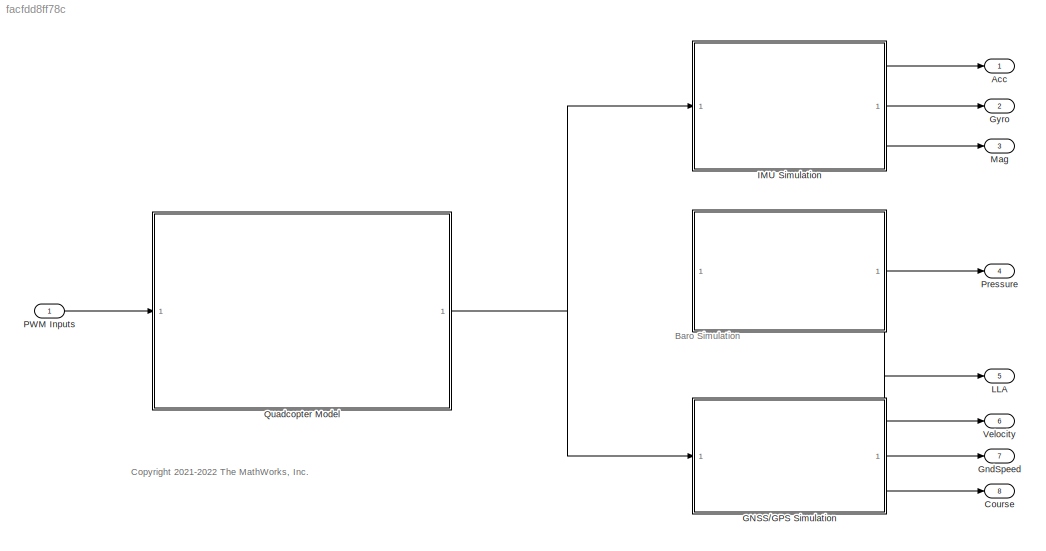
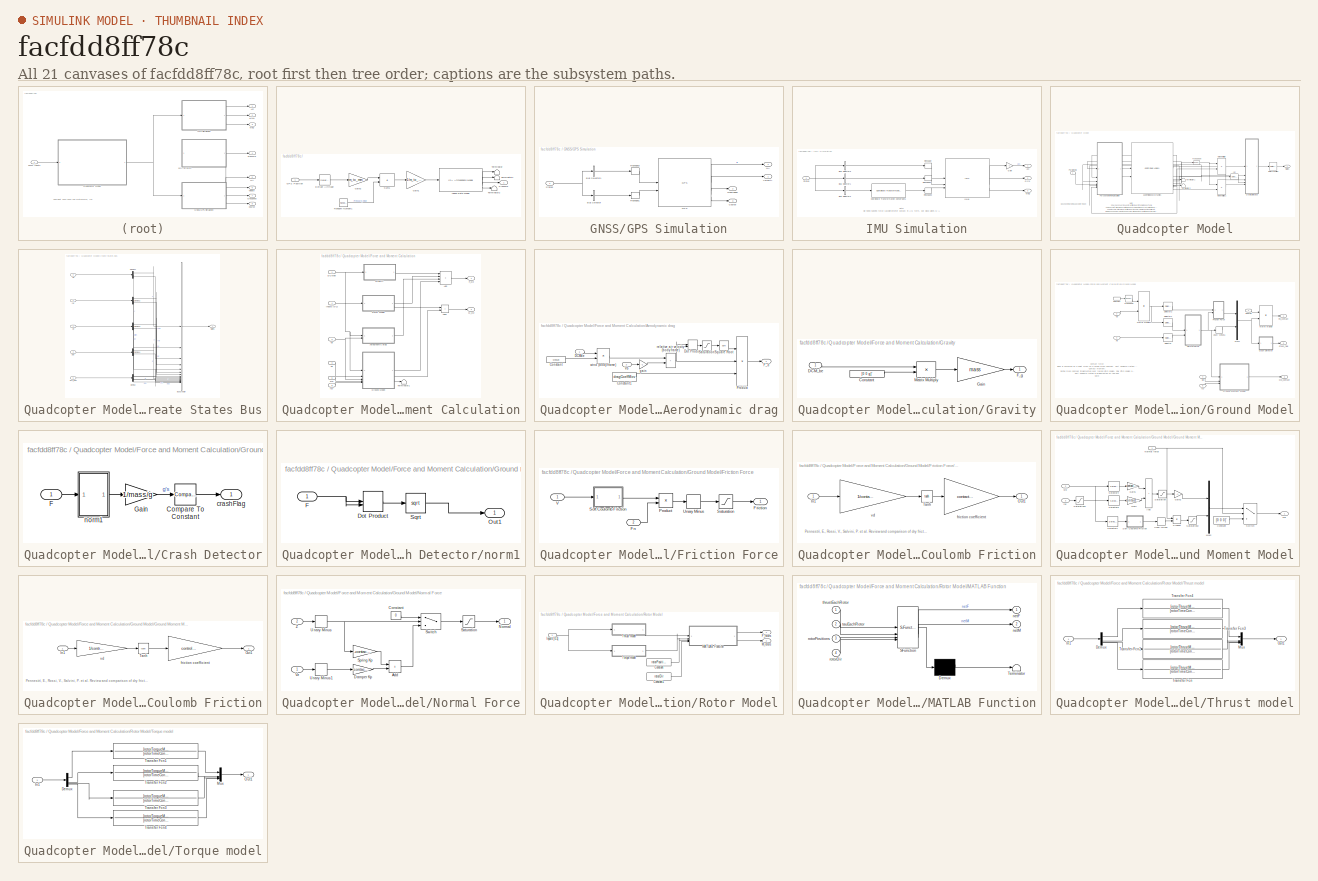
[diagram: thumbnail index - all 21 canvases of the model, root first then tree order]
MODEL slx_facfdd8ff78c
KIND model
CONFIG AbsTol = auto
CONFIG EnableMultiTasking = off
CONFIG FixedStep = auto
CONFIG MaxStep = auto
CONFIG MinStep = auto
CONFIG RelTol = 1e-3
CONFIG SampleTimeConstraint = Unconstrained
CONFIG SolverName = ode4
CONFIG StartTime = 0.0
CONFIG StopTime = 10.0
BLOCK [SubSystem]  
  PortSchema = {"entries":[{"content":{"sides":[{"content":{"connectorIds":[]},"type":"ConnectorPlacement.EquallySpacedRectSide","uuid":"7ecc8b21-8f8f-4144-826a-6b68e30dbf7d"},{"content":{"connectorIds":["Out1"],"side":"RIGHT"},"type":"ConnectorPlacement.EquallySpacedRectSide","uuid":"81a1dd55-8330-4386-9921-36c0eb60d526"},{"content":{"connectorIds":[],"side":"TOP"},"type":"ConnectorPlacement.EquallySpacedRectSi...<+384ch>
BLOCK [Selector]  /Extract Altitude
  IndexOptions = Index vector (dialog)
  Indices = [3]
  InputPortWidth = 3
  OutputSizes = 1
BLOCK [Inport]  /GPS Position
BLOCK [Gain]  /Gain1
  Gain = 1/m_to_mm
BLOCK [Gain]  /Gain2
  Gain = m_to_mm
BLOCK [Reference]  /Lapse Rate Model  REF=aerolibatmos2/ISA Atmosphere Model
  SourceBlock = aerolibatmos2/ISA Atmosphere Model
  SourceType = International Standard Atmosphere Model
BLOCK [Outport]  /Pressure
BLOCK [RandomNumber]  /Random Number1
  SampleTime = SampleTime
  Seed = 10
  Variance = 10000
BLOCK [Sum]  /Sum1
  IconShape = rectangular
  Inputs = |++
BLOCK [Terminator]  /Terminator
BLOCK [Terminator]  /Terminator1
BLOCK [Terminator]  /Terminator2
BLOCK [Outport] Acc
BLOCK [Outport] Course
  Port = 8
BLOCK [SubSystem] GNSS//GPS Simulation
  PortSchema = {"entries":[{"content":{"sides":[{"content":{"connectorIds":["In1"]},"type":"ConnectorPlacement.EquallySpacedRectSide","uuid":"4934e8ff-5d4b-4e11-968d-c23bd62383a0"},{"content":{"connectorIds":["Out1","Out2","Out3"],"side":"RIGHT"},"type":"ConnectorPlacement.EquallySpacedRectSide","uuid":"9ec8bc0a-2d3c-4dca-835c-010ac29b6ebc"},{"content":{"connectorIds":["Out4"],"side":"TOP"},"type":"ConnectorPlac...<+260ch>
BLOCK [BusSelector] GNSS//GPS Simulation/Bus Selector
  OutputAsBus = on
  OutputSignals = dx,dy,dz
BLOCK [BusSelector] GNSS//GPS Simulation/Bus Selector1
  OutputAsBus = on
  OutputSignals = X,Y,Z
BLOCK [Outport] GNSS//GPS Simulation/Course
  Port = 3
BLOCK [Reference] GNSS//GPS Simulation/GPS  REF=sensorgpslib/GPS
  SourceBlock = sensorgpslib/GPS
  SourceType = fusion.internal.simulink.gpsSensor
BLOCK [Outport] GNSS//GPS Simulation/GndSpeed
  Port = 2
BLOCK [Outport] GNSS//GPS Simulation/LLA
  Port = 4
BLOCK [Reshape] GNSS//GPS Simulation/Reshape1
  OutputDimensionality = Row vector (2-D)
BLOCK [Reshape] GNSS//GPS Simulation/Reshape3
  OutputDimensionality = Row vector (2-D)
BLOCK [Inport] GNSS//GPS Simulation/States
BLOCK [Outport] GNSS//GPS Simulation/Velocity
BLOCK [Outport] GndSpeed
  Port = 7
BLOCK [Outport] Gyro
  Port = 2
BLOCK [SubSystem] IMU Simulation
BLOCK [Outport] IMU Simulation/Acc
BLOCK [BusSelector] IMU Simulation/Bus Selector1
  OutputAsBus = on
  OutputSignals = p,q,r
BLOCK [BusSelector] IMU Simulation/Bus Selector2
  OutputAsBus = on
  OutputSignals = yaw,pitch,roll
BLOCK [BusSelector] IMU Simulation/Bus Selector3
  OutputAsBus = on
  OutputSignals = ddx,ddy,ddz
BLOCK [Reference] IMU Simulation/Coordinate Transformation Conversion1  REF=robotcorelib/Coordinate Transformation Conversion
  SourceBlock = robotcorelib/Coordinate Transformation Conversion
  SourceType = robotics.slcore.internal.block.CoordinateTransformationConversion
BLOCK [Gain] IMU Simulation/Gain
  Gain = -1
BLOCK [Outport] IMU Simulation/Gyro
  Port = 2
BLOCK [Reference] IMU Simulation/IMU1  REF=mspsensorlib/IMU
  SourceBlock = mspsensorlib/IMU
  SourceType = fusion.simulink.imuSensor
BLOCK [Outport] IMU Simulation/Mag
  Port = 3
BLOCK [Reshape] IMU Simulation/Reshape
  OutputDimensionality = Row vector (2-D)
BLOCK [Reshape] IMU Simulation/Reshape2
  OutputDimensionality = Row vector (2-D)
BLOCK [Reshape] IMU Simulation/Reshape3
  OutputDimensionality = Row vector (2-D)
BLOCK [Inport] IMU Simulation/States
BLOCK [Outport] LLA
  Port = 5
BLOCK [Outport] Mag
  Port = 3
BLOCK [Inport] PWM Inputs
BLOCK [Outport] Pressure
  Port = 4
BLOCK [SubSystem] Quadcopter Model
BLOCK [Reference] Quadcopter Model/6DOF Rigid body dynamics   REF=shared6dof/6DOF (Euler Angles)
  SourceBlock = shared6dof/6DOF (Euler Angles)
  SourceType = 6DOF EoM (Body Axis)
BLOCK [SubSystem] Quadcopter Model/Create States Bus
BLOCK [BusCreator] Quadcopter Model/Create States Bus/Bus Creator
  DisplayOption = bar
  InheritFromInputs = on
  Inputs = X,Y,Z,yaw,pitch,roll,dx,dy,dz,p,q,r,ddx,ddy,ddz
BLOCK [Demux] Quadcopter Model/Create States Bus/Demux
  Outputs = 3
BLOCK [Demux] Quadcopter Model/Create States Bus/Demux1
  Outputs = 3
BLOCK [Demux] Quadcopter Model/Create States Bus/Demux2
  Outputs = 3
BLOCK [Demux] Quadcopter Model/Create States Bus/Demux3
  Outputs = 3
BLOCK [Demux] Quadcopter Model/Create States Bus/Demux4
  Outputs = 3
BLOCK [Outport] Quadcopter Model/Create States Bus/States
BLOCK [Inport] Quadcopter Model/Create States Bus/Ve
BLOCK [Inport] Quadcopter Model/Create States Bus/Xe
  Port = 2
BLOCK [Inport] Quadcopter Model/Create States Bus/acc_lnav
  Port = 5
BLOCK [Inport] Quadcopter Model/Create States Bus/pqr
  Port = 3
BLOCK [Inport] Quadcopter Model/Create States Bus/ypr
  Port = 4
BLOCK [SubSystem] Quadcopter Model/Force and Moment Calculation
BLOCK [Sum] Quadcopter Model/Force and Moment Calculation/Add
  IconShape = rectangular
  Inputs = ++++
BLOCK [Sum] Quadcopter Model/Force and Moment Calculation/Add1
  IconShape = rectangular
BLOCK [SubSystem] Quadcopter Model/Force and Moment Calculation/Aerodynamic drag
BLOCK [Constant] Quadcopter Model/Force and Moment Calculation/Aerodynamic drag/Constant
  Value = windVel
BLOCK [Constant] Quadcopter Model/Force and Moment Calculation/Aerodynamic drag/Constant1
  Value = dragCoeffMov
BLOCK [Inport] Quadcopter Model/Force and Moment Calculation/Aerodynamic drag/DCMbe
BLOCK [DotProduct] Quadcopter Model/Force and Moment Calculation/Aerodynamic drag/Dot Product
  OutDataTypeStr = Inherit: Inherit via internal rule
BLOCK [Outport] Quadcopter Model/Force and Moment Calculation/Aerodynamic drag/F_d
BLOCK [Product] Quadcopter Model/Force and Moment Calculation/Aerodynamic drag/Product
  Inputs = 3
BLOCK [Saturate] Quadcopter Model/Force and Moment Calculation/Aerodynamic drag/Saturation
  LowerLimit = 0.0001
  UpperLimit = inf
BLOCK [Sqrt] Quadcopter Model/Force and Moment Calculation/Aerodynamic drag/Square Root
BLOCK [Inport] Quadcopter Model/Force and Moment Calculation/Aerodynamic drag/Vb
  Port = 2
BLOCK [Gain] Quadcopter Model/Force and Moment Calculation/Aerodynamic drag/gain
  Gain = -1
BLOCK [Sum] Quadcopter Model/Force and Moment Calculation/Aerodynamic drag/relative air velocity (body frame)
  IconShape = rectangular
BLOCK [Product] Quadcopter Model/Force and Moment Calculation/Aerodynamic drag/wind (body frame)
  Multiplication = Matrix(*)
BLOCK [Inport] Quadcopter Model/Force and Moment Calculation/DCMbe
BLOCK [Outport] Quadcopter Model/Force and Moment Calculation/F_xyz
BLOCK [SubSystem] Quadcopter Model/Force and Moment Calculation/Gravity
BLOCK [Constant] Quadcopter Model/Force and Moment Calculation/Gravity/Constant
  Value = [0 0 g]'
BLOCK [Inport] Quadcopter Model/Force and Moment Calculation/Gravity/DCM_be
BLOCK [Outport] Quadcopter Model/Force and Moment Calculation/Gravity/F_g
BLOCK [Gain] Quadcopter Model/Force and Moment Calculation/Gravity/Gain
  Gain = mass
BLOCK [Product] Quadcopter Model/Force and Moment Calculation/Gravity/Matrix Multiply
  Multiplication = Matrix(*)
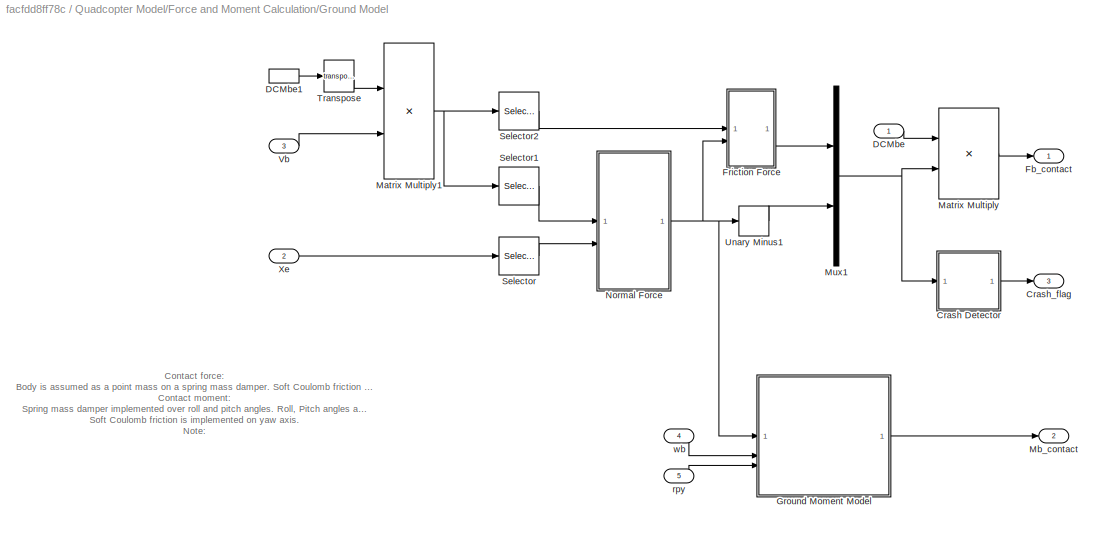
BLOCK [SubSystem] Quadcopter Model/Force and Moment Calculation/Ground Model
BLOCK [SubSystem] Quadcopter Model/Force and Moment Calculation/Ground Model/Crash Detector
BLOCK [Reference] Quadcopter Model/Force and Moment Calculation/Ground Model/Crash Detector/Compare To Constant  REF=simulink/Logic and Bit
Operations/Compare
To Constant
  SourceBlock = simulink/Logic and Bit\nOperations/Compare\nTo Constant
  SourceType = Compare To Constant
BLOCK [Inport] Quadcopter Model/Force and Moment Calculation/Ground Model/Crash Detector/F
BLOCK [Gain] Quadcopter Model/Force and Moment Calculation/Ground Model/Crash Detector/Gain
  Gain = 1/mass/g
BLOCK [Outport] Quadcopter Model/Force and Moment Calculation/Ground Model/Crash Detector/crashFlag
BLOCK [SubSystem] Quadcopter Model/Force and Moment Calculation/Ground Model/Crash Detector/norm1
BLOCK [DotProduct] Quadcopter Model/Force and Moment Calculation/Ground Model/Crash Detector/norm1/Dot Product
  OutDataTypeStr = Inherit: Inherit via internal rule
BLOCK [Inport] Quadcopter Model/Force and Moment Calculation/Ground Model/Crash Detector/norm1/F
BLOCK [Outport] Quadcopter Model/Force and Moment Calculation/Ground Model/Crash Detector/norm1/Out1
BLOCK [Sqrt] Quadcopter Model/Force and Moment Calculation/Ground Model/Crash Detector/norm1/Sqrt
BLOCK [Outport] Quadcopter Model/Force and Moment Calculation/Ground Model/Crash_flag
  Port = 3
BLOCK [Inport] Quadcopter Model/Force and Moment Calculation/Ground Model/DCMbe
BLOCK [InportShadow] Quadcopter Model/Force and Moment Calculation/Ground Model/DCMbe1
BLOCK [Outport] Quadcopter Model/Force and Moment Calculation/Ground Model/Fb_contact
BLOCK [SubSystem] Quadcopter Model/Force and Moment Calculation/Ground Model/Friction Force
BLOCK [Inport] Quadcopter Model/Force and Moment Calculation/Ground Model/Friction Force/Fn
  Port = 2
BLOCK [Outport] Quadcopter Model/Force and Moment Calculation/Ground Model/Friction Force/Friction
BLOCK [Product] Quadcopter Model/Force and Moment Calculation/Ground Model/Friction Force/Product
BLOCK [Saturate] Quadcopter Model/Force and Moment Calculation/Ground Model/Friction Force/Saturation
  LowerLimit = -contact.translation.maxFriction
  UpperLimit = contact.translation.maxFriction
BLOCK [SubSystem] Quadcopter Model/Force and Moment Calculation/Ground Model/Friction Force/Soft Coulomb Friction
BLOCK [Inport] Quadcopter Model/Force and Moment Calculation/Ground Model/Friction Force/Soft Coulomb Friction/In1
BLOCK [Outport] Quadcopter Model/Force and Moment Calculation/Ground Model/Friction Force/Soft Coulomb Friction/Out1
BLOCK [Trigonometry] Quadcopter Model/Force and Moment Calculation/Ground Model/Friction Force/Soft Coulomb Friction/Tanh
  Operator = tanh
BLOCK [Gain] Quadcopter Model/Force and Moment Calculation/Ground Model/Friction Force/Soft Coulomb Friction/friction coefficient
  Gain = contact.translation.friction
BLOCK [Gain] Quadcopter Model/Force and Moment Calculation/Ground Model/Friction Force/Soft Coulomb Friction/vd
  Gain = 1/contact.translation.vd
BLOCK [UnaryMinus] Quadcopter Model/Force and Moment Calculation/Ground Model/Friction Force/Unary Minus
BLOCK [Inport] Quadcopter Model/Force and Moment Calculation/Ground Model/Friction Force/V
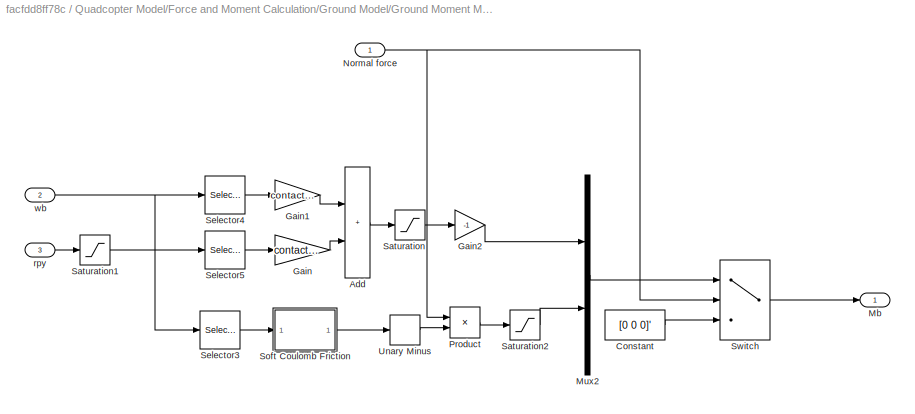
BLOCK [SubSystem] Quadcopter Model/Force and Moment Calculation/Ground Model/Ground Moment Model
BLOCK [Sum] Quadcopter Model/Force and Moment Calculation/Ground Model/Ground Moment Model/Add
  IconShape = rectangular
BLOCK [Constant] Quadcopter Model/Force and Moment Calculation/Ground Model/Ground Moment Model/Constant
  Value = [0 0 0]'
BLOCK [Gain] Quadcopter Model/Force and Moment Calculation/Ground Model/Ground Moment Model/Gain
  Gain = contact.rotation.spring
BLOCK [Gain] Quadcopter Model/Force and Moment Calculation/Ground Model/Ground Moment Model/Gain1
  Gain = contact.rotation.damper
BLOCK [Gain] Quadcopter Model/Force and Moment Calculation/Ground Model/Ground Moment Model/Gain2
  Gain = -1
BLOCK [Outport] Quadcopter Model/Force and Moment Calculation/Ground Model/Ground Moment Model/Mb
BLOCK [Mux] Quadcopter Model/Force and Moment Calculation/Ground Model/Ground Moment Model/Mux2
  DisplayOption = bar
  Inputs = 2
BLOCK [Inport] Quadcopter Model/Force and Moment Calculation/Ground Model/Ground Moment Model/Normal force
BLOCK [Product] Quadcopter Model/Force and Moment Calculation/Ground Model/Ground Moment Model/Product
BLOCK [Saturate] Quadcopter Model/Force and Moment Calculation/Ground Model/Ground Moment Model/Saturation
  LowerLimit = -control.rotation.maxMoment
  UpperLimit = control.rotation.maxMoment
BLOCK [Saturate] Quadcopter Model/Force and Moment Calculation/Ground Model/Ground Moment Model/Saturation1
  LowerLimit = -20*pi/180
  UpperLimit = 20*pi/180
BLOCK [Saturate] Quadcopter Model/Force and Moment Calculation/Ground Model/Ground Moment Model/Saturation2
  LowerLimit = -control.rotation.maxMoment
  UpperLimit = control.rotation.maxMoment
BLOCK [Selector] Quadcopter Model/Force and Moment Calculation/Ground Model/Ground Moment Model/Selector3
  IndexOptions = Index vector (dialog)
  Indices = [3]
  InputPortWidth = 3
  OutputSizes = 1
BLOCK [Selector] Quadcopter Model/Force and Moment Calculation/Ground Model/Ground Moment Model/Selector4
  IndexOptions = Index vector (dialog)
  Indices = [1, 2]
  InputPortWidth = 3
  OutputSizes = 1
BLOCK [Selector] Quadcopter Model/Force and Moment Calculation/Ground Model/Ground Moment Model/Selector5
  IndexOptions = Index vector (dialog)
  Indices = [1, 2]
  InputPortWidth = 3
  OutputSizes = 1
BLOCK [SubSystem] Quadcopter Model/Force and Moment Calculation/Ground Model/Ground Moment Model/Soft Coulomb Friction
BLOCK [Inport] Quadcopter Model/Force and Moment Calculation/Ground Model/Ground Moment Model/Soft Coulomb Friction/In1
BLOCK [Outport] Quadcopter Model/Force and Moment Calculation/Ground Model/Ground Moment Model/Soft Coulomb Friction/Out1
BLOCK [Trigonometry] Quadcopter Model/Force and Moment Calculation/Ground Model/Ground Moment Model/Soft Coulomb Friction/Tanh
  Operator = tanh
BLOCK [Gain] Quadcopter Model/Force and Moment Calculation/Ground Model/Ground Moment Model/Soft Coulomb Friction/friction coefficient
  Gain = control.rotation.friction
BLOCK [Gain] Quadcopter Model/Force and Moment Calculation/Ground Model/Ground Moment Model/Soft Coulomb Friction/vd
  Gain = 1/control.rotation.vd
BLOCK [Switch] Quadcopter Model/Force and Moment Calculation/Ground Model/Ground Moment Model/Switch
  Criteria = u2 > Threshold
  InputSameDT = off
  SaturateOnIntegerOverflow = off
BLOCK [UnaryMinus] Quadcopter Model/Force and Moment Calculation/Ground Model/Ground Moment Model/Unary Minus
BLOCK [Inport] Quadcopter Model/Force and Moment Calculation/Ground Model/Ground Moment Model/rpy
  Port = 3
BLOCK [Inport] Quadcopter Model/Force and Moment Calculation/Ground Model/Ground Moment Model/wb
  Port = 2
BLOCK [Product] Quadcopter Model/Force and Moment Calculation/Ground Model/Matrix Multiply
  Multiplication = Matrix(*)
BLOCK [Product] Quadcopter Model/Force and Moment Calculation/Ground Model/Matrix Multiply1
  Multiplication = Matrix(*)
BLOCK [Outport] Quadcopter Model/Force and Moment Calculation/Ground Model/Mb_contact
  Port = 2
BLOCK [Mux] Quadcopter Model/Force and Moment Calculation/Ground Model/Mux1
  DisplayOption = bar
  Inputs = 2
BLOCK [SubSystem] Quadcopter Model/Force and Moment Calculation/Ground Model/Normal Force
BLOCK [Sum] Quadcopter Model/Force and Moment Calculation/Ground Model/Normal Force/Add
  IconShape = rectangular
BLOCK [Constant] Quadcopter Model/Force and Moment Calculation/Ground Model/Normal Force/Constant
  Value = 0
BLOCK [Gain] Quadcopter Model/Force and Moment Calculation/Ground Model/Normal Force/Damper Kp
  Gain = -contact.translation.damper
BLOCK [Outport] Quadcopter Model/Force and Moment Calculation/Ground Model/Normal Force/Normal
BLOCK [Saturate] Quadcopter Model/Force and Moment Calculation/Ground Model/Normal Force/Saturation
  LowerLimit = 0
  UpperLimit = contact.translation.maxNormal
BLOCK [Gain] Quadcopter Model/Force and Moment Calculation/Ground Model/Normal Force/Spring Kp
  Gain = -contact.translation.spring
BLOCK [Switch] Quadcopter Model/Force and Moment Calculation/Ground Model/Normal Force/Switch
  Criteria = u2 > Threshold
  InputSameDT = off
  SaturateOnIntegerOverflow = off
BLOCK [UnaryMinus] Quadcopter Model/Force and Moment Calculation/Ground Model/Normal Force/Unary Minus
BLOCK [UnaryMinus] Quadcopter Model/Force and Moment Calculation/Ground Model/Normal Force/Unary Minus1
BLOCK [Inport] Quadcopter Model/Force and Moment Calculation/Ground Model/Normal Force/Vz
BLOCK [Inport] Quadcopter Model/Force and Moment Calculation/Ground Model/Normal Force/Z
  Port = 2
BLOCK [Selector] Quadcopter Model/Force and Moment Calculation/Ground Model/Selector
  IndexOptions = Index vector (dialog)
  Indices = [3]
  InputPortWidth = 3
  OutputSizes = 1
BLOCK [Selector] Quadcopter Model/Force and Moment Calculation/Ground Model/Selector1
  IndexOptions = Index vector (dialog)
  Indices = [3]
  InputPortWidth = 3
  OutputSizes = 1
BLOCK [Selector] Quadcopter Model/Force and Moment Calculation/Ground Model/Selector2
  IndexOptions = Index vector (dialog)
  Indices = [1,2]
  InputPortWidth = 3
  OutputSizes = 1
BLOCK [Math] Quadcopter Model/Force and Moment Calculation/Ground Model/Transpose
  Operator = transpose
BLOCK [UnaryMinus] Quadcopter Model/Force and Moment Calculation/Ground Model/Unary Minus1
BLOCK [Inport] Quadcopter Model/Force and Moment Calculation/Ground Model/Vb
  Port = 3
BLOCK [Inport] Quadcopter Model/Force and Moment Calculation/Ground Model/Xe
  Port = 2
BLOCK [Inport] Quadcopter Model/Force and Moment Calculation/Ground Model/rpy
  Port = 5
BLOCK [Inport] Quadcopter Model/Force and Moment Calculation/Ground Model/wb
  Port = 4
BLOCK [Inport] Quadcopter Model/Force and Moment Calculation/Inputs [0-1]
  Port = 4
BLOCK [Outport] Quadcopter Model/Force and Moment Calculation/M_xyz
  Port = 2
BLOCK [SubSystem] Quadcopter Model/Force and Moment Calculation/Rotor Model
BLOCK [Constant] Quadcopter Model/Force and Moment Calculation/Rotor Model/Constant
  Value = rotorPositions
BLOCK [Constant] Quadcopter Model/Force and Moment Calculation/Rotor Model/Constant1
  Value = rotorDir
BLOCK [Outport] Quadcopter Model/Force and Moment Calculation/Rotor Model/F_rotors
BLOCK [Inport] Quadcopter Model/Force and Moment Calculation/Rotor Model/Inputs [0-1]
BLOCK [SubSystem] Quadcopter Model/Force and Moment Calculation/Rotor Model/MATLAB Function
  ErrorFcn = Stateflow.Translate.translate
  PermitHierarchicalResolution = ExplicitOnly
  SFBlockType = MATLAB Function
  TreatAsAtomicUnit = on
BLOCK [Demux] Quadcopter Model/Force and Moment Calculation/Rotor Model/MATLAB Function/ Demux 
  Outputs = 1
BLOCK [S-Function] Quadcopter Model/Force and Moment Calculation/Rotor Model/MATLAB Function/ SFunction 
  EnableBusSupport = off
  FunctionName = sf_sfun
  PortCounts = [4 3]
  SFcnIsStateOwnerBlock = off
  SFunctionDeploymentMode = off
  Tag = Stateflow S-Function 5
BLOCK [Terminator] Quadcopter Model/Force and Moment Calculation/Rotor Model/MATLAB Function/ Terminator 
BLOCK [Outport] Quadcopter Model/Force and Moment Calculation/Rotor Model/MATLAB Function/netF
  VectorParamsAs1DForOutWhenUnconnected = off
BLOCK [Outport] Quadcopter Model/Force and Moment Calculation/Rotor Model/MATLAB Function/netM
  Port = 2
BLOCK [Inport] Quadcopter Model/Force and Moment Calculation/Rotor Model/MATLAB Function/rotorDir
  Port = 4
BLOCK [Inport] Quadcopter Model/Force and Moment Calculation/Rotor Model/MATLAB Function/rotorPositions
  Port = 3
BLOCK [Inport] Quadcopter Model/Force and Moment Calculation/Rotor Model/MATLAB Function/tauEachRotor
  Port = 2
BLOCK [Inport] Quadcopter Model/Force and Moment Calculation/Rotor Model/MATLAB Function/thrustEachRotor
BLOCK [Outport] Quadcopter Model/Force and Moment Calculation/Rotor Model/M_rotors
  Port = 2
BLOCK [SubSystem] Quadcopter Model/Force and Moment Calculation/Rotor Model/Thrust model
BLOCK [Demux] Quadcopter Model/Force and Moment Calculation/Rotor Model/Thrust model/Demux
BLOCK [Inport] Quadcopter Model/Force and Moment Calculation/Rotor Model/Thrust model/In1
BLOCK [Mux] Quadcopter Model/Force and Moment Calculation/Rotor Model/Thrust model/Mux
  DisplayOption = bar
BLOCK [Outport] Quadcopter Model/Force and Moment Calculation/Rotor Model/Thrust model/Out1
BLOCK [TransferFcn] Quadcopter Model/Force and Moment Calculation/Rotor Model/Thrust model/Transfer Fcn
  Denominator = [rotorTimeConst 1]
  Numerator = [rotorThrustMax]
BLOCK [TransferFcn] Quadcopter Model/Force and Moment Calculation/Rotor Model/Thrust model/Transfer Fcn2
  Denominator = [rotorTimeConst 1]
  Numerator = [rotorThrustMax]
BLOCK [TransferFcn] Quadcopter Model/Force and Moment Calculation/Rotor Model/Thrust model/Transfer Fcn3
  Denominator = [rotorTimeConst 1]
  Numerator = [rotorThrustMax]
BLOCK [TransferFcn] Quadcopter Model/Force and Moment Calculation/Rotor Model/Thrust model/Transfer Fcn4
  Denominator = [rotorTimeConst 1]
  Numerator = [rotorThrustMax]
BLOCK [SubSystem] Quadcopter Model/Force and Moment Calculation/Rotor Model/Torque model
BLOCK [Demux] Quadcopter Model/Force and Moment Calculation/Rotor Model/Torque model/Demux
BLOCK [Inport] Quadcopter Model/Force and Moment Calculation/Rotor Model/Torque model/In1
BLOCK [Mux] Quadcopter Model/Force and Moment Calculation/Rotor Model/Torque model/Mux
  DisplayOption = bar
BLOCK [Outport] Quadcopter Model/Force and Moment Calculation/Rotor Model/Torque model/Out1
BLOCK [TransferFcn] Quadcopter Model/Force and Moment Calculation/Rotor Model/Torque model/Transfer Fcn1
  Denominator = [rotorTimeConst 1]
  Numerator = [rotorTorqueMax]
BLOCK [TransferFcn] Quadcopter Model/Force and Moment Calculation/Rotor Model/Torque model/Transfer Fcn2
  Denominator = [rotorTimeConst 1]
  Numerator = [rotorTorqueMax]
BLOCK [TransferFcn] Quadcopter Model/Force and Moment Calculation/Rotor Model/Torque model/Transfer Fcn3
  Denominator = [rotorTimeConst 1]
  Numerator = [rotorTorqueMax]
BLOCK [TransferFcn] Quadcopter Model/Force and Moment Calculation/Rotor Model/Torque model/Transfer Fcn4
  Denominator = [rotorTimeConst 1]
  Numerator = [rotorTorqueMax]
BLOCK [Terminator] Quadcopter Model/Force and Moment Calculation/Terminator1
BLOCK [Inport] Quadcopter Model/Force and Moment Calculation/Vb
  Port = 2
BLOCK [Inport] Quadcopter Model/Force and Moment Calculation/Xe
  Port = 3
BLOCK [Inport] Quadcopter Model/Force and Moment Calculation/rpy
  Port = 5
BLOCK [Inport] Quadcopter Model/Force and Moment Calculation/wb
  Port = 6
BLOCK [Product] Quadcopter Model/Matrix Multiply
  Multiplication = Matrix(*)
BLOCK [Product] Quadcopter Model/Matrix Multiply1
  Multiplication = Matrix(*)
BLOCK [Inport] Quadcopter Model/PWM Inputs
BLOCK [RateTransition] Quadcopter Model/Rate Transition
  OutPortSampleTime = SampleTime
BLOCK [Outport] Quadcopter Model/States
BLOCK [Terminator] Quadcopter Model/Terminator1
BLOCK [Terminator] Quadcopter Model/Terminator2
BLOCK [Math] Quadcopter Model/Transpose
  Operator = transpose
BLOCK [Selector] Quadcopter Model/ypr
  IndexOptions = Index vector (dialog)
  Indices = [3 2 1]
  InputPortWidth = 3
  OutputSizes = 1
BLOCK [Outport] Velocity
  Port = 6
ANNOTATION (root): Baro Simulation
ANNOTATION (root): <copyright redacted>
ANNOTATION IMU Simulation: Note: we need specific force (accelerometer output) in A-G form, but block gives G-A.
ANNOTATION Quadcopter Model: Note: DCM_be converts a vector written in earth frame to body frame Abe is acceleration of body written in body frame, but measured relative to earth. To get acceleration of body written in earth frame (NED fixed on takeoff location), we need to convert the frame. IMU block's angular velocity and acceleration inputs are written in earth frame (NED)
ANNOTATION Quadcopter Model: Based on jmavsim quadcopter model
ANNOTATION Quadcopter Model/Force and Moment Calculation/Ground Model: Contact force: Body is assumed as a point mass on a spring mass damper. Soft Coulomb friction model is used to simulate friction. Contact moment: Spring mass damper implemented over roll and pitch angles. Roll, Pitch angles are assumed to be small. Soft Coulomb friction is implemented on yaw axis. Note: Contact forces are sensed by accelerometer model. A hard contact model would generate high swit...<+103ch>
ANNOTATION Quadcopter Model/Force and Moment Calculation/Ground Model/Friction Force/Soft Coulomb Friction: Pennestrì, E., Rossi, V., Salvini, P. et al. Review and comparison of dry friction force models. Nonlinear Dyn 83, 1785–1801 (2016). https://doi.org/10.1007/s11071-015-2485-3
ANNOTATION Quadcopter Model/Force and Moment Calculation/Ground Model/Ground Moment Model/Soft Coulomb Friction: Pennestrì, E., Rossi, V., Salvini, P. et al. Review and comparison of dry friction force models. Nonlinear Dyn 83, 1785–1801 (2016). https://doi.org/10.1007/s11071-015-2485-3
LINE  /Extract Altitude:1 ->  /Gain2:1
LINE  /GPS Position:1 ->  /Extract Altitude:1
LINE  /Gain1:1 ->  /Lapse Rate Model:1
LINE  /Gain2:1 ->  /Sum1:1
LINE  /Lapse Rate Model:1 ->  /Terminator:1
LINE  /Lapse Rate Model:2 ->  /Terminator1:1
LINE  /Lapse Rate Model:3 ->  /Pressure:1
LINE  /Lapse Rate Model:4 ->  /Terminator2:1
LINE  /Random Number1:1 ->  /Sum1:2
LINE  /Sum1:1 ->  /Gain1:1
LINE  :1 -> Pressure:1
LINE GNSS//GPS Simulation/Bus Selector1:1 -> GNSS//GPS Simulation/Reshape3:1
LINE GNSS//GPS Simulation/Bus Selector:1 -> GNSS//GPS Simulation/Reshape1:1
LINE GNSS//GPS Simulation/GPS:1 -> GNSS//GPS Simulation/LLA:1
LINE GNSS//GPS Simulation/GPS:2 -> GNSS//GPS Simulation/Velocity:1
LINE GNSS//GPS Simulation/GPS:3 -> GNSS//GPS Simulation/GndSpeed:1
LINE GNSS//GPS Simulation/GPS:4 -> GNSS//GPS Simulation/Course:1
LINE GNSS//GPS Simulation/Reshape1:1 -> GNSS//GPS Simulation/GPS:2
LINE GNSS//GPS Simulation/Reshape3:1 -> GNSS//GPS Simulation/GPS:1
NET GNSS//GPS Simulation/States:1 -> GNSS//GPS Simulation/Bus Selector1:1, GNSS//GPS Simulation/Bus Selector:1
LINE GNSS//GPS Simulation:1 -> Velocity:1
LINE GNSS//GPS Simulation:2 -> GndSpeed:1
LINE GNSS//GPS Simulation:3 -> Course:1
NET GNSS//GPS Simulation:4 ->  :1, LLA:1
LINE IMU Simulation/Bus Selector1:1 -> IMU Simulation/Reshape2:1
LINE IMU Simulation/Bus Selector2:1 -> IMU Simulation/Coordinate Transformation Conversion1:1
LINE IMU Simulation/Bus Selector3:1 -> IMU Simulation/Reshape:1
LINE IMU Simulation/Coordinate Transformation Conversion1:1 -> IMU Simulation/Reshape3:1
LINE IMU Simulation/Gain:1 -> IMU Simulation/Acc:1
LINE IMU Simulation/IMU1:1 -> IMU Simulation/Gain:1
LINE IMU Simulation/IMU1:2 -> IMU Simulation/Gyro:1
LINE IMU Simulation/IMU1:3 -> IMU Simulation/Mag:1
LINE IMU Simulation/Reshape2:1 -> IMU Simulation/IMU1:2
LINE IMU Simulation/Reshape3:1 -> IMU Simulation/IMU1:3
LINE IMU Simulation/Reshape:1 -> IMU Simulation/IMU1:1
NET IMU Simulation/States:1 -> IMU Simulation/Bus Selector1:1, IMU Simulation/Bus Selector2:1, IMU Simulation/Bus Selector3:1
LINE IMU Simulation:1 -> Acc:1
LINE IMU Simulation:2 -> Gyro:1
LINE IMU Simulation:3 -> Mag:1
LINE PWM Inputs:1 -> Quadcopter Model:1
LINE Quadcopter Model/6DOF Rigid body dynamics :1 -> Quadcopter Model/Create States Bus:1
NET Quadcopter Model/6DOF Rigid body dynamics :2 -> Quadcopter Model/Create States Bus:2, Quadcopter Model/Force and Moment Calculation:3
NET Quadcopter Model/6DOF Rigid body dynamics :3 -> Quadcopter Model/Force and Moment Calculation:5, Quadcopter Model/ypr:1
NET Quadcopter Model/6DOF Rigid body dynamics :4 -> Quadcopter Model/Force and Moment Calculation:1, Quadcopter Model/Transpose:1
LINE Quadcopter Model/6DOF Rigid body dynamics :5 -> Quadcopter Model/Force and Moment Calculation:2
NET Quadcopter Model/6DOF Rigid body dynamics :6 -> Quadcopter Model/Force and Moment Calculation:6, Quadcopter Model/Matrix Multiply:2
LINE Quadcopter Model/6DOF Rigid body dynamics :7 -> Quadcopter Model/Terminator1:1
LINE Quadcopter Model/6DOF Rigid body dynamics :8 -> Quadcopter Model/Terminator2:1
LINE Quadcopter Model/6DOF Rigid body dynamics :9 -> Quadcopter Model/Matrix Multiply1:2
LINE Quadcopter Model/Create States Bus/Bus Creator:1 -> Quadcopter Model/Create States Bus/States:1
LINE Quadcopter Model/Create States Bus/Demux1:1 -> Quadcopter Model/Create States Bus/Bus Creator:1
LINE Quadcopter Model/Create States Bus/Demux1:2 -> Quadcopter Model/Create States Bus/Bus Creator:2
LINE Quadcopter Model/Create States Bus/Demux1:3 -> Quadcopter Model/Create States Bus/Bus Creator:3
LINE Quadcopter Model/Create States Bus/Demux2:1 -> Quadcopter Model/Create States Bus/Bus Creator:4
LINE Quadcopter Model/Create States Bus/Demux2:2 -> Quadcopter Model/Create States Bus/Bus Creator:5
LINE Quadcopter Model/Create States Bus/Demux2:3 -> Quadcopter Model/Create States Bus/Bus Creator:6
LINE Quadcopter Model/Create States Bus/Demux3:1 -> Quadcopter Model/Create States Bus/Bus Creator:7
LINE Quadcopter Model/Create States Bus/Demux3:2 -> Quadcopter Model/Create States Bus/Bus Creator:8
LINE Quadcopter Model/Create States Bus/Demux3:3 -> Quadcopter Model/Create States Bus/Bus Creator:9
LINE Quadcopter Model/Create States Bus/Demux4:1 -> Quadcopter Model/Create States Bus/Bus Creator:10
LINE Quadcopter Model/Create States Bus/Demux4:2 -> Quadcopter Model/Create States Bus/Bus Creator:11
LINE Quadcopter Model/Create States Bus/Demux4:3 -> Quadcopter Model/Create States Bus/Bus Creator:12
LINE Quadcopter Model/Create States Bus/Demux:1 -> Quadcopter Model/Create States Bus/Bus Creator:13
LINE Quadcopter Model/Create States Bus/Demux:2 -> Quadcopter Model/Create States Bus/Bus Creator:14
LINE Quadcopter Model/Create States Bus/Demux:3 -> Quadcopter Model/Create States Bus/Bus Creator:15
LINE Quadcopter Model/Create States Bus/Ve:1 -> Quadcopter Model/Create States Bus/Demux3:1
LINE Quadcopter Model/Create States Bus/Xe:1 -> Quadcopter Model/Create States Bus/Demux1:1
LINE Quadcopter Model/Create States Bus/acc_lnav:1 -> Quadcopter Model/Create States Bus/Demux:1
LINE Quadcopter Model/Create States Bus/pqr:1 -> Quadcopter Model/Create States Bus/Demux4:1
LINE Quadcopter Model/Create States Bus/ypr:1 -> Quadcopter Model/Create States Bus/Demux2:1
LINE Quadcopter Model/Create States Bus:1 -> Quadcopter Model/Rate Transition:1
LINE Quadcopter Model/Force and Moment Calculation/Add1:1 -> Quadcopter Model/Force and Moment Calculation/M_xyz:1
LINE Quadcopter Model/Force and Moment Calculation/Add:1 -> Quadcopter Model/Force and Moment Calculation/F_xyz:1
LINE Quadcopter Model/Force and Moment Calculation/Aerodynamic drag/Constant1:1 -> Quadcopter Model/Force and Moment Calculation/Aerodynamic drag/Product:3
LINE Quadcopter Model/Force and Moment Calculation/Aerodynamic drag/Constant:1 -> Quadcopter Model/Force and Moment Calculation/Aerodynamic drag/wind (body frame):2
LINE Quadcopter Model/Force and Moment Calculation/Aerodynamic drag/DCMbe:1 -> Quadcopter Model/Force and Moment Calculation/Aerodynamic drag/wind (body frame):1
LINE Quadcopter Model/Force and Moment Calculation/Aerodynamic drag/Dot Product:1 -> Quadcopter Model/Force and Moment Calculation/Aerodynamic drag/Saturation:1
LINE Quadcopter Model/Force and Moment Calculation/Aerodynamic drag/Product:1 -> Quadcopter Model/Force and Moment Calculation/Aerodynamic drag/F_d:1
LINE Quadcopter Model/Force and Moment Calculation/Aerodynamic drag/Saturation:1 -> Quadcopter Model/Force and Moment Calculation/Aerodynamic drag/Square Root:1
LINE Quadcopter Model/Force and Moment Calculation/Aerodynamic drag/Square Root:1 -> Quadcopter Model/Force and Moment Calculation/Aerodynamic drag/Product:1
LINE Quadcopter Model/Force and Moment Calculation/Aerodynamic drag/Vb:1 -> Quadcopter Model/Force and Moment Calculation/Aerodynamic drag/gain:1
LINE Quadcopter Model/Force and Moment Calculation/Aerodynamic drag/gain:1 -> Quadcopter Model/Force and Moment Calculation/Aerodynamic drag/relative air velocity (body frame):2
NET Quadcopter Model/Force and Moment Calculation/Aerodynamic drag/relative air velocity (body frame):1 -> Quadcopter Model/Force and Moment Calculation/Aerodynamic drag/Dot Product:1, Quadcopter Model/Force and Moment Calculation/Aerodynamic drag/Dot Product:2, Quadcopter Model/Force and Moment Calculation/Aerodynamic drag/Product:2
LINE Quadcopter Model/Force and Moment Calculation/Aerodynamic drag/wind (body frame):1 -> Quadcopter Model/Force and Moment Calculation/Aerodynamic drag/relative air velocity (body frame):1
LINE Quadcopter Model/Force and Moment Calculation/Aerodynamic drag:1 -> Quadcopter Model/Force and Moment Calculation/Add:3
NET Quadcopter Model/Force and Moment Calculation/DCMbe:1 -> Quadcopter Model/Force and Moment Calculation/Aerodynamic drag:1, Quadcopter Model/Force and Moment Calculation/Gravity:1, Quadcopter Model/Force and Moment Calculation/Ground Model:1
LINE Quadcopter Model/Force and Moment Calculation/Gravity/Constant:1 -> Quadcopter Model/Force and Moment Calculation/Gravity/Matrix Multiply:2
LINE Quadcopter Model/Force and Moment Calculation/Gravity/DCM_be:1 -> Quadcopter Model/Force and Moment Calculation/Gravity/Matrix Multiply:1
LINE Quadcopter Model/Force and Moment Calculation/Gravity/Gain:1 -> Quadcopter Model/Force and Moment Calculation/Gravity/F_g:1
LINE Quadcopter Model/Force and Moment Calculation/Gravity/Matrix Multiply:1 -> Quadcopter Model/Force and Moment Calculation/Gravity/Gain:1
LINE Quadcopter Model/Force and Moment Calculation/Gravity:1 -> Quadcopter Model/Force and Moment Calculation/Add:1
LINE Quadcopter Model/Force and Moment Calculation/Ground Model/Crash Detector/Compare To Constant:1 -> Quadcopter Model/Force and Moment Calculation/Ground Model/Crash Detector/crashFlag:1
LINE Quadcopter Model/Force and Moment Calculation/Ground Model/Crash Detector/F:1 -> Quadcopter Model/Force and Moment Calculation/Ground Model/Crash Detector/norm1:1
LINE Quadcopter Model/Force and Moment Calculation/Ground Model/Crash Detector/Gain:1 -> Quadcopter Model/Force and Moment Calculation/Ground Model/Crash Detector/Compare To Constant:1
LINE Quadcopter Model/Force and Moment Calculation/Ground Model/Crash Detector/norm1/Dot Product:1 -> Quadcopter Model/Force and Moment Calculation/Ground Model/Crash Detector/norm1/Sqrt:1
NET Quadcopter Model/Force and Moment Calculation/Ground Model/Crash Detector/norm1/F:1 -> Quadcopter Model/Force and Moment Calculation/Ground Model/Crash Detector/norm1/Dot Product:1, Quadcopter Model/Force and Moment Calculation/Ground Model/Crash Detector/norm1/Dot Product:2
LINE Quadcopter Model/Force and Moment Calculation/Ground Model/Crash Detector/norm1/Sqrt:1 -> Quadcopter Model/Force and Moment Calculation/Ground Model/Crash Detector/norm1/Out1:1
LINE Quadcopter Model/Force and Moment Calculation/Ground Model/Crash Detector/norm1:1 -> Quadcopter Model/Force and Moment Calculation/Ground Model/Crash Detector/Gain:1
LINE Quadcopter Model/Force and Moment Calculation/Ground Model/Crash Detector:1 -> Quadcopter Model/Force and Moment Calculation/Ground Model/Crash_flag:1
LINE Quadcopter Model/Force and Moment Calculation/Ground Model/DCMbe1:1 -> Quadcopter Model/Force and Moment Calculation/Ground Model/Transpose:1
LINE Quadcopter Model/Force and Moment Calculation/Ground Model/DCMbe:1 -> Quadcopter Model/Force and Moment Calculation/Ground Model/Matrix Multiply:1
LINE Quadcopter Model/Force and Moment Calculation/Ground Model/Friction Force/Fn:1 -> Quadcopter Model/Force and Moment Calculation/Ground Model/Friction Force/Product:2
LINE Quadcopter Model/Force and Moment Calculation/Ground Model/Friction Force/Product:1 -> Quadcopter Model/Force and Moment Calculation/Ground Model/Friction Force/Unary Minus:1
LINE Quadcopter Model/Force and Moment Calculation/Ground Model/Friction Force/Saturation:1 -> Quadcopter Model/Force and Moment Calculation/Ground Model/Friction Force/Friction:1
LINE Quadcopter Model/Force and Moment Calculation/Ground Model/Friction Force/Soft Coulomb Friction/In1:1 -> Quadcopter Model/Force and Moment Calculation/Ground Model/Friction Force/Soft Coulomb Friction/vd:1
LINE Quadcopter Model/Force and Moment Calculation/Ground Model/Friction Force/Soft Coulomb Friction/Tanh:1 -> Quadcopter Model/Force and Moment Calculation/Ground Model/Friction Force/Soft Coulomb Friction/friction coefficient:1
LINE Quadcopter Model/Force and Moment Calculation/Ground Model/Friction Force/Soft Coulomb Friction/friction coefficient:1 -> Quadcopter Model/Force and Moment Calculation/Ground Model/Friction Force/Soft Coulomb Friction/Out1:1
LINE Quadcopter Model/Force and Moment Calculation/Ground Model/Friction Force/Soft Coulomb Friction/vd:1 -> Quadcopter Model/Force and Moment Calculation/Ground Model/Friction Force/Soft Coulomb Friction/Tanh:1
LINE Quadcopter Model/Force and Moment Calculation/Ground Model/Friction Force/Soft Coulomb Friction:1 -> Quadcopter Model/Force and Moment Calculation/Ground Model/Friction Force/Product:1
LINE Quadcopter Model/Force and Moment Calculation/Ground Model/Friction Force/Unary Minus:1 -> Quadcopter Model/Force and Moment Calculation/Ground Model/Friction Force/Saturation:1
LINE Quadcopter Model/Force and Moment Calculation/Ground Model/Friction Force/V:1 -> Quadcopter Model/Force and Moment Calculation/Ground Model/Friction Force/Soft Coulomb Friction:1
LINE Quadcopter Model/Force and Moment Calculation/Ground Model/Friction Force:1 -> Quadcopter Model/Force and Moment Calculation/Ground Model/Mux1:1
LINE Quadcopter Model/Force and Moment Calculation/Ground Model/Ground Moment Model/Add:1 -> Quadcopter Model/Force and Moment Calculation/Ground Model/Ground Moment Model/Saturation:1
LINE Quadcopter Model/Force and Moment Calculation/Ground Model/Ground Moment Model/Constant:1 -> Quadcopter Model/Force and Moment Calculation/Ground Model/Ground Moment Model/Switch:3
LINE Quadcopter Model/Force and Moment Calculation/Ground Model/Ground Moment Model/Gain1:1 -> Quadcopter Model/Force and Moment Calculation/Ground Model/Ground Moment Model/Add:1
LINE Quadcopter Model/Force and Moment Calculation/Ground Model/Ground Moment Model/Gain2:1 -> Quadcopter Model/Force and Moment Calculation/Ground Model/Ground Moment Model/Mux2:1
LINE Quadcopter Model/Force and Moment Calculation/Ground Model/Ground Moment Model/Gain:1 -> Quadcopter Model/Force and Moment Calculation/Ground Model/Ground Moment Model/Add:2
LINE Quadcopter Model/Force and Moment Calculation/Ground Model/Ground Moment Model/Mux2:1 -> Quadcopter Model/Force and Moment Calculation/Ground Model/Ground Moment Model/Switch:1
NET Quadcopter Model/Force and Moment Calculation/Ground Model/Ground Moment Model/Normal force:1 -> Quadcopter Model/Force and Moment Calculation/Ground Model/Ground Moment Model/Product:1, Quadcopter Model/Force and Moment Calculation/Ground Model/Ground Moment Model/Switch:2
LINE Quadcopter Model/Force and Moment Calculation/Ground Model/Ground Moment Model/Product:1 -> Quadcopter Model/Force and Moment Calculation/Ground Model/Ground Moment Model/Saturation2:1
LINE Quadcopter Model/Force and Moment Calculation/Ground Model/Ground Moment Model/Saturation1:1 -> Quadcopter Model/Force and Moment Calculation/Ground Model/Ground Moment Model/Selector5:1
LINE Quadcopter Model/Force and Moment Calculation/Ground Model/Ground Moment Model/Saturation2:1 -> Quadcopter Model/Force and Moment Calculation/Ground Model/Ground Moment Model/Mux2:2
LINE Quadcopter Model/Force and Moment Calculation/Ground Model/Ground Moment Model/Saturation:1 -> Quadcopter Model/Force and Moment Calculation/Ground Model/Ground Moment Model/Gain2:1
LINE Quadcopter Model/Force and Moment Calculation/Ground Model/Ground Moment Model/Selector3:1 -> Quadcopter Model/Force and Moment Calculation/Ground Model/Ground Moment Model/Soft Coulomb Friction:1
LINE Quadcopter Model/Force and Moment Calculation/Ground Model/Ground Moment Model/Selector4:1 -> Quadcopter Model/Force and Moment Calculation/Ground Model/Ground Moment Model/Gain1:1
LINE Quadcopter Model/Force and Moment Calculation/Ground Model/Ground Moment Model/Selector5:1 -> Quadcopter Model/Force and Moment Calculation/Ground Model/Ground Moment Model/Gain:1
LINE Quadcopter Model/Force and Moment Calculation/Ground Model/Ground Moment Model/Soft Coulomb Friction/In1:1 -> Quadcopter Model/Force and Moment Calculation/Ground Model/Ground Moment Model/Soft Coulomb Friction/vd:1
LINE Quadcopter Model/Force and Moment Calculation/Ground Model/Ground Moment Model/Soft Coulomb Friction/Tanh:1 -> Quadcopter Model/Force and Moment Calculation/Ground Model/Ground Moment Model/Soft Coulomb Friction/friction coefficient:1
LINE Quadcopter Model/Force and Moment Calculation/Ground Model/Ground Moment Model/Soft Coulomb Friction/friction coefficient:1 -> Quadcopter Model/Force and Moment Calculation/Ground Model/Ground Moment Model/Soft Coulomb Friction/Out1:1
LINE Quadcopter Model/Force and Moment Calculation/Ground Model/Ground Moment Model/Soft Coulomb Friction/vd:1 -> Quadcopter Model/Force and Moment Calculation/Ground Model/Ground Moment Model/Soft Coulomb Friction/Tanh:1
LINE Quadcopter Model/Force and Moment Calculation/Ground Model/Ground Moment Model/Soft Coulomb Friction:1 -> Quadcopter Model/Force and Moment Calculation/Ground Model/Ground Moment Model/Unary Minus:1
LINE Quadcopter Model/Force and Moment Calculation/Ground Model/Ground Moment Model/Switch:1 -> Quadcopter Model/Force and Moment Calculation/Ground Model/Ground Moment Model/Mb:1
LINE Quadcopter Model/Force and Moment Calculation/Ground Model/Ground Moment Model/Unary Minus:1 -> Quadcopter Model/Force and Moment Calculation/Ground Model/Ground Moment Model/Product:2
LINE Quadcopter Model/Force and Moment Calculation/Ground Model/Ground Moment Model/rpy:1 -> Quadcopter Model/Force and Moment Calculation/Ground Model/Ground Moment Model/Saturation1:1
NET Quadcopter Model/Force and Moment Calculation/Ground Model/Ground Moment Model/wb:1 -> Quadcopter Model/Force and Moment Calculation/Ground Model/Ground Moment Model/Selector3:1, Quadcopter Model/Force and Moment Calculation/Ground Model/Ground Moment Model/Selector4:1
LINE Quadcopter Model/Force and Moment Calculation/Ground Model/Ground Moment Model:1 -> Quadcopter Model/Force and Moment Calculation/Ground Model/Mb_contact:1
NET Quadcopter Model/Force and Moment Calculation/Ground Model/Matrix Multiply1:1 -> Quadcopter Model/Force and Moment Calculation/Ground Model/Selector1:1, Quadcopter Model/Force and Moment Calculation/Ground Model/Selector2:1
LINE Quadcopter Model/Force and Moment Calculation/Ground Model/Matrix Multiply:1 -> Quadcopter Model/Force and Moment Calculation/Ground Model/Fb_contact:1
NET Quadcopter Model/Force and Moment Calculation/Ground Model/Mux1:1 -> Quadcopter Model/Force and Moment Calculation/Ground Model/Crash Detector:1, Quadcopter Model/Force and Moment Calculation/Ground Model/Matrix Multiply:2
LINE Quadcopter Model/Force and Moment Calculation/Ground Model/Normal Force/Add:1 -> Quadcopter Model/Force and Moment Calculation/Ground Model/Normal Force/Switch:3
LINE Quadcopter Model/Force and Moment Calculation/Ground Model/Normal Force/Constant:1 -> Quadcopter Model/Force and Moment Calculation/Ground Model/Normal Force/Switch:1
LINE Quadcopter Model/Force and Moment Calculation/Ground Model/Normal Force/Damper Kp:1 -> Quadcopter Model/Force and Moment Calculation/Ground Model/Normal Force/Add:2
LINE Quadcopter Model/Force and Moment Calculation/Ground Model/Normal Force/Saturation:1 -> Quadcopter Model/Force and Moment Calculation/Ground Model/Normal Force/Normal:1
LINE Quadcopter Model/Force and Moment Calculation/Ground Model/Normal Force/Spring Kp:1 -> Quadcopter Model/Force and Moment Calculation/Ground Model/Normal Force/Add:1
LINE Quadcopter Model/Force and Moment Calculation/Ground Model/Normal Force/Switch:1 -> Quadcopter Model/Force and Moment Calculation/Ground Model/Normal Force/Saturation:1
LINE Quadcopter Model/Force and Moment Calculation/Ground Model/Normal Force/Unary Minus1:1 -> Quadcopter Model/Force and Moment Calculation/Ground Model/Normal Force/Damper Kp:1
NET Quadcopter Model/Force and Moment Calculation/Ground Model/Normal Force/Unary Minus:1 -> Quadcopter Model/Force and Moment Calculation/Ground Model/Normal Force/Spring Kp:1, Quadcopter Model/Force and Moment Calculation/Ground Model/Normal Force/Switch:2
LINE Quadcopter Model/Force and Moment Calculation/Ground Model/Normal Force/Vz:1 -> Quadcopter Model/Force and Moment Calculation/Ground Model/Normal Force/Unary Minus1:1
LINE Quadcopter Model/Force and Moment Calculation/Ground Model/Normal Force/Z:1 -> Quadcopter Model/Force and Moment Calculation/Ground Model/Normal Force/Unary Minus:1
NET Quadcopter Model/Force and Moment Calculation/Ground Model/Normal Force:1 -> Quadcopter Model/Force and Moment Calculation/Ground Model/Friction Force:2, Quadcopter Model/Force and Moment Calculation/Ground Model/Ground Moment Model:1, Quadcopter Model/Force and Moment Calculation/Ground Model/Unary Minus1:1
LINE Quadcopter Model/Force and Moment Calculation/Ground Model/Selector1:1 -> Quadcopter Model/Force and Moment Calculation/Ground Model/Normal Force:1
LINE Quadcopter Model/Force and Moment Calculation/Ground Model/Selector2:1 -> Quadcopter Model/Force and Moment Calculation/Ground Model/Friction Force:1
LINE Quadcopter Model/Force and Moment Calculation/Ground Model/Selector:1 -> Quadcopter Model/Force and Moment Calculation/Ground Model/Normal Force:2
LINE Quadcopter Model/Force and Moment Calculation/Ground Model/Transpose:1 -> Quadcopter Model/Force and Moment Calculation/Ground Model/Matrix Multiply1:1
LINE Quadcopter Model/Force and Moment Calculation/Ground Model/Unary Minus1:1 -> Quadcopter Model/Force and Moment Calculation/Ground Model/Mux1:2
LINE Quadcopter Model/Force and Moment Calculation/Ground Model/Vb:1 -> Quadcopter Model/Force and Moment Calculation/Ground Model/Matrix Multiply1:2
LINE Quadcopter Model/Force and Moment Calculation/Ground Model/Xe:1 -> Quadcopter Model/Force and Moment Calculation/Ground Model/Selector:1
LINE Quadcopter Model/Force and Moment Calculation/Ground Model/rpy:1 -> Quadcopter Model/Force and Moment Calculation/Ground Model/Ground Moment Model:3
LINE Quadcopter Model/Force and Moment Calculation/Ground Model/wb:1 -> Quadcopter Model/Force and Moment Calculation/Ground Model/Ground Moment Model:2
LINE Quadcopter Model/Force and Moment Calculation/Ground Model:1 -> Quadcopter Model/Force and Moment Calculation/Add:4
LINE Quadcopter Model/Force and Moment Calculation/Ground Model:2 -> Quadcopter Model/Force and Moment Calculation/Add1:2
LINE Quadcopter Model/Force and Moment Calculation/Ground Model:3 -> Quadcopter Model/Force and Moment Calculation/Terminator1:1
LINE Quadcopter Model/Force and Moment Calculation/Inputs [0-1]:1 -> Quadcopter Model/Force and Moment Calculation/Rotor Model:1
LINE Quadcopter Model/Force and Moment Calculation/Rotor Model/Constant1:1 -> Quadcopter Model/Force and Moment Calculation/Rotor Model/MATLAB Function:4
LINE Quadcopter Model/Force and Moment Calculation/Rotor Model/Constant:1 -> Quadcopter Model/Force and Moment Calculation/Rotor Model/MATLAB Function:3
NET Quadcopter Model/Force and Moment Calculation/Rotor Model/Inputs [0-1]:1 -> Quadcopter Model/Force and Moment Calculation/Rotor Model/Thrust model:1, Quadcopter Model/Force and Moment Calculation/Rotor Model/Torque model:1
LINE Quadcopter Model/Force and Moment Calculation/Rotor Model/MATLAB Function:1 -> Quadcopter Model/Force and Moment Calculation/Rotor Model/F_rotors:1
LINE Quadcopter Model/Force and Moment Calculation/Rotor Model/MATLAB Function:2 -> Quadcopter Model/Force and Moment Calculation/Rotor Model/M_rotors:1
LINE Quadcopter Model/Force and Moment Calculation/Rotor Model/Thrust model/Demux:1 -> Quadcopter Model/Force and Moment Calculation/Rotor Model/Thrust model/Transfer Fcn4:1
LINE Quadcopter Model/Force and Moment Calculation/Rotor Model/Thrust model/Demux:2 -> Quadcopter Model/Force and Moment Calculation/Rotor Model/Thrust model/Transfer Fcn3:1
LINE Quadcopter Model/Force and Moment Calculation/Rotor Model/Thrust model/Demux:3 -> Quadcopter Model/Force and Moment Calculation/Rotor Model/Thrust model/Transfer Fcn2:1
LINE Quadcopter Model/Force and Moment Calculation/Rotor Model/Thrust model/Demux:4 -> Quadcopter Model/Force and Moment Calculation/Rotor Model/Thrust model/Transfer Fcn:1
LINE Quadcopter Model/Force and Moment Calculation/Rotor Model/Thrust model/In1:1 -> Quadcopter Model/Force and Moment Calculation/Rotor Model/Thrust model/Demux:1
LINE Quadcopter Model/Force and Moment Calculation/Rotor Model/Thrust model/Mux:1 -> Quadcopter Model/Force and Moment Calculation/Rotor Model/Thrust model/Out1:1
LINE Quadcopter Model/Force and Moment Calculation/Rotor Model/Thrust model/Transfer Fcn2:1 -> Quadcopter Model/Force and Moment Calculation/Rotor Model/Thrust model/Mux:3
LINE Quadcopter Model/Force and Moment Calculation/Rotor Model/Thrust model/Transfer Fcn3:1 -> Quadcopter Model/Force and Moment Calculation/Rotor Model/Thrust model/Mux:2
LINE Quadcopter Model/Force and Moment Calculation/Rotor Model/Thrust model/Transfer Fcn4:1 -> Quadcopter Model/Force and Moment Calculation/Rotor Model/Thrust model/Mux:1
LINE Quadcopter Model/Force and Moment Calculation/Rotor Model/Thrust model/Transfer Fcn:1 -> Quadcopter Model/Force and Moment Calculation/Rotor Model/Thrust model/Mux:4
LINE Quadcopter Model/Force and Moment Calculation/Rotor Model/Thrust model:1 -> Quadcopter Model/Force and Moment Calculation/Rotor Model/MATLAB Function:1
LINE Quadcopter Model/Force and Moment Calculation/Rotor Model/Torque model/Demux:1 -> Quadcopter Model/Force and Moment Calculation/Rotor Model/Torque model/Transfer Fcn1:1
LINE Quadcopter Model/Force and Moment Calculation/Rotor Model/Torque model/Demux:2 -> Quadcopter Model/Force and Moment Calculation/Rotor Model/Torque model/Transfer Fcn2:1
LINE Quadcopter Model/Force and Moment Calculation/Rotor Model/Torque model/Demux:3 -> Quadcopter Model/Force and Moment Calculation/Rotor Model/Torque model/Transfer Fcn3:1
LINE Quadcopter Model/Force and Moment Calculation/Rotor Model/Torque model/Demux:4 -> Quadcopter Model/Force and Moment Calculation/Rotor Model/Torque model/Transfer Fcn4:1
LINE Quadcopter Model/Force and Moment Calculation/Rotor Model/Torque model/In1:1 -> Quadcopter Model/Force and Moment Calculation/Rotor Model/Torque model/Demux:1
LINE Quadcopter Model/Force and Moment Calculation/Rotor Model/Torque model/Mux:1 -> Quadcopter Model/Force and Moment Calculation/Rotor Model/Torque model/Out1:1
LINE Quadcopter Model/Force and Moment Calculation/Rotor Model/Torque model/Transfer Fcn1:1 -> Quadcopter Model/Force and Moment Calculation/Rotor Model/Torque model/Mux:1
LINE Quadcopter Model/Force and Moment Calculation/Rotor Model/Torque model/Transfer Fcn2:1 -> Quadcopter Model/Force and Moment Calculation/Rotor Model/Torque model/Mux:2
LINE Quadcopter Model/Force and Moment Calculation/Rotor Model/Torque model/Transfer Fcn3:1 -> Quadcopter Model/Force and Moment Calculation/Rotor Model/Torque model/Mux:3
LINE Quadcopter Model/Force and Moment Calculation/Rotor Model/Torque model/Transfer Fcn4:1 -> Quadcopter Model/Force and Moment Calculation/Rotor Model/Torque model/Mux:4
LINE Quadcopter Model/Force and Moment Calculation/Rotor Model/Torque model:1 -> Quadcopter Model/Force and Moment Calculation/Rotor Model/MATLAB Function:2
LINE Quadcopter Model/Force and Moment Calculation/Rotor Model:1 -> Quadcopter Model/Force and Moment Calculation/Add:2
LINE Quadcopter Model/Force and Moment Calculation/Rotor Model:2 -> Quadcopter Model/Force and Moment Calculation/Add1:1
NET Quadcopter Model/Force and Moment Calculation/Vb:1 -> Quadcopter Model/Force and Moment Calculation/Aerodynamic drag:2, Quadcopter Model/Force and Moment Calculation/Ground Model:3
LINE Quadcopter Model/Force and Moment Calculation/Xe:1 -> Quadcopter Model/Force and Moment Calculation/Ground Model:2
LINE Quadcopter Model/Force and Moment Calculation/rpy:1 -> Quadcopter Model/Force and Moment Calculation/Ground Model:5
LINE Quadcopter Model/Force and Moment Calculation/wb:1 -> Quadcopter Model/Force and Moment Calculation/Ground Model:4
LINE Quadcopter Model/Force and Moment Calculation:1 -> Quadcopter Model/6DOF Rigid body dynamics :1
LINE Quadcopter Model/Force and Moment Calculation:2 -> Quadcopter Model/6DOF Rigid body dynamics :2
LINE Quadcopter Model/Matrix Multiply1:1 -> Quadcopter Model/Create States Bus:5
LINE Quadcopter Model/Matrix Multiply:1 -> Quadcopter Model/Create States Bus:3
LINE Quadcopter Model/PWM Inputs:1 -> Quadcopter Model/Force and Moment Calculation:4
LINE Quadcopter Model/Rate Transition:1 -> Quadcopter Model/States:1
NET Quadcopter Model/Transpose:1 -> Quadcopter Model/Matrix Multiply1:1, Quadcopter Model/Matrix Multiply:1
LINE Quadcopter Model/ypr:1 -> Quadcopter Model/Create States Bus:4
NET Quadcopter Model:1 -> GNSS//GPS Simulation:1, IMU Simulation:1
note: NET lines group one-source signal fan-out (src -> all destinations, sorted); 1:1 wires keep LINE
CHART Quadcopter Model/Force and Moment Calculation/Rotor Model/MATLAB Function states=1 transitions=1
  STATE_LABEL 'eML_blk_kernel()'
  STATE_LABEL "SCRIPT:\nfunction [netF, netM] = getForceMoment(thrustEachRotor, tauEachRotor, rotorPositions, rotorDir)\n%#codegen\nFx = 0;\nFy = 0;\nFz = -sum(thrustEachRotor);\n\nnetF = [Fx; Fy; Fz];\n\nnetM = [0; 0; 0]; %initialize\n    for i = 1:4\n        rotPos = rotorPositions(:, i);\n        Fi = [0, 0, -thrustEachRotor(i)]';\n        netM = netM +  cross(rotPos, Fi);%contribution from thrusts of each propeller\n     ...<+118ch>"
CHART  states=0 transitions=0
